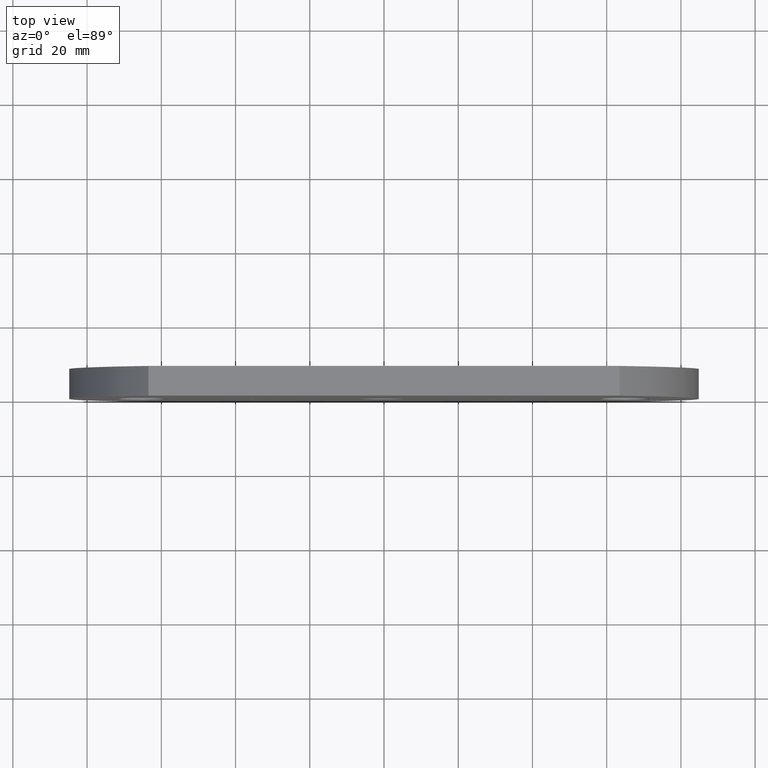
[diagram: clean part render]
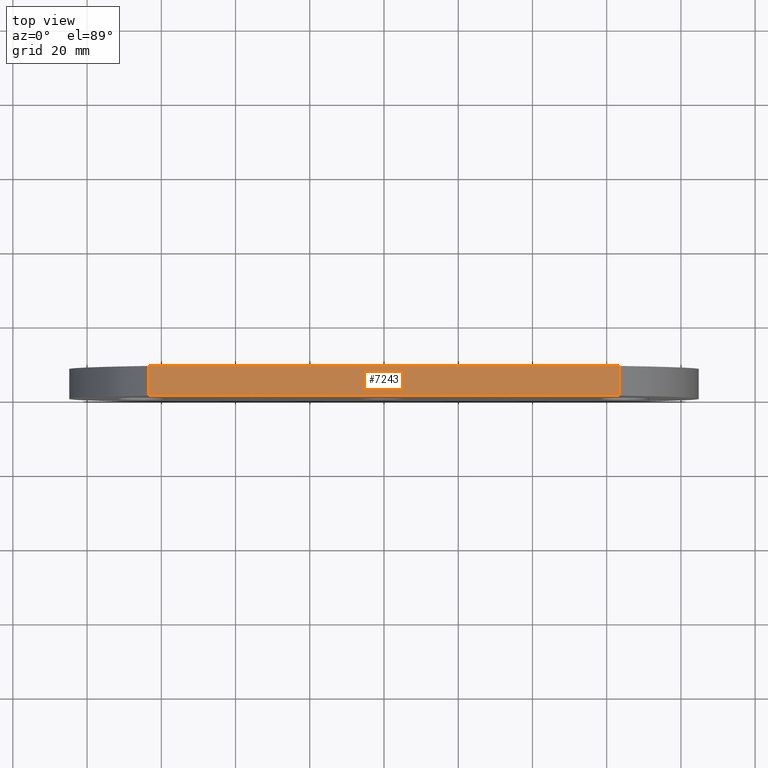
[diagram: same view with one face highlighted and labeled with its STEP entity id]
A machine part, top view. The second image highlights one B-rep face of the part: STEP entity #7243.
In plain terms, the highlighted planar face has unit normal (0, 0, -1).
Its self-contained STEP definition (entity closure, byte-faithful):
#394 = EDGE_CURVE ( 'NONE', #4260, #2837, #7217, .T. ) ;
#529 = DIRECTION ( 'NONE',  ( 1.000000000000000000, 0.0000000000000000000, 2.731847993664263200E-016 ) ) ;
#1055 = LINE ( 'NONE', #4814, #6795 ) ;
#1106 = CARTESIAN_POINT ( 'NONE',  ( -63.50000000000001400, 8.000000000000000000, 49.99999999999997900 ) ) ;
#1198 = AXIS2_PLACEMENT_3D ( 'NONE', #10952, #4106, #9186 ) ;
#1275 = FACE_OUTER_BOUND ( 'NONE', #3135, .T. ) ;
#1498 = CARTESIAN_POINT ( 'NONE',  ( 63.49999999999998600, 0.0000000000000000000, 50.00000000000001400 ) ) ;
#1932 = EDGE_CURVE ( 'NONE', #2837, #9062, #1055, .T. ) ;
#2498 = LINE ( 'NONE', #6388, #2907 ) ;
#2837 = VERTEX_POINT ( 'NONE', #7357 ) ;
#2907 = VECTOR ( 'NONE', #4688, 1000.000000000000000 ) ;
#3135 = EDGE_LOOP ( 'NONE', ( #6652, #8622, #5632, #5491 ) ) ;
#3156 = VECTOR ( 'NONE', #4125, 1000.000000000000000 ) ;
#3346 = EDGE_CURVE ( 'NONE', #4260, #8723, #2498, .T. ) ;
#4106 = DIRECTION ( 'NONE',  ( 2.731847993664263200E-016, 0.0000000000000000000, -1.000000000000000000 ) ) ;
#4125 = DIRECTION ( 'NONE',  ( -0.0000000000000000000, -1.000000000000000000, -0.0000000000000000000 ) ) ;
#4260 = VERTEX_POINT ( 'NONE', #1106 ) ;
#4688 = DIRECTION ( 'NONE',  ( 1.000000000000000000, 0.0000000000000000000, 2.731847993664263200E-016 ) ) ;
#4814 = CARTESIAN_POINT ( 'NONE',  ( -63.50000000000001400, 0.0000000000000000000, 49.99999999999997900 ) ) ;
#5409 = LINE ( 'NONE', #7565, #3156 ) ;
#5491 = ORIENTED_EDGE ( 'NONE', *, *, #394, .T. ) ;
#5632 = ORIENTED_EDGE ( 'NONE', *, *, #3346, .F. ) ;
#6388 = CARTESIAN_POINT ( 'NONE',  ( -63.50000000000001400, 8.000000000000000000, 49.99999999999997900 ) ) ;
#6591 = PLANE ( 'NONE',  #1198 ) ;
#6652 = ORIENTED_EDGE ( 'NONE', *, *, #1932, .T. ) ;
#6795 = VECTOR ( 'NONE', #529, 1000.000000000000000 ) ;
#7217 = LINE ( 'NONE', #9110, #8164 ) ;
#7243 = ADVANCED_FACE ( 'NONE', ( #1275 ), #6591, .F. ) ;
#7357 = CARTESIAN_POINT ( 'NONE',  ( -63.50000000000001400, 0.0000000000000000000, 49.99999999999997900 ) ) ;
#7497 = DIRECTION ( 'NONE',  ( -0.0000000000000000000, -1.000000000000000000, -0.0000000000000000000 ) ) ;
#7565 = CARTESIAN_POINT ( 'NONE',  ( 63.49999999999998600, 8.000000000000000000, 50.00000000000001400 ) ) ;
#8164 = VECTOR ( 'NONE', #7497, 1000.000000000000000 ) ;
#8622 = ORIENTED_EDGE ( 'NONE', *, *, #9584, .F. ) ;
#8723 = VERTEX_POINT ( 'NONE', #10405 ) ;
#9062 = VERTEX_POINT ( 'NONE', #1498 ) ;
#9110 = CARTESIAN_POINT ( 'NONE',  ( -63.50000000000001400, 8.000000000000000000, 49.99999999999997900 ) ) ;
#9186 = DIRECTION ( 'NONE',  ( -1.000000000000000000, 0.0000000000000000000, -2.731847993664263200E-016 ) ) ;
#9584 = EDGE_CURVE ( 'NONE', #8723, #9062, #5409, .T. ) ;
#10405 = CARTESIAN_POINT ( 'NONE',  ( 63.49999999999998600, 8.000000000000000000, 50.00000000000001400 ) ) ;
#10952 = CARTESIAN_POINT ( 'NONE',  ( -63.50000000000001400, 8.000000000000000000, 49.99999999999997900 ) ) ;